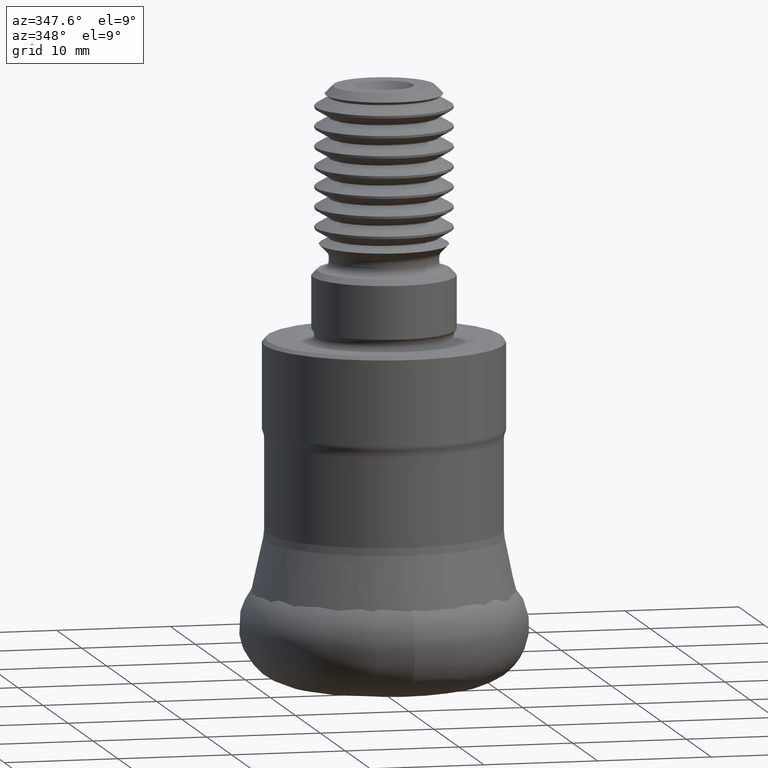
[diagram: clean part render]
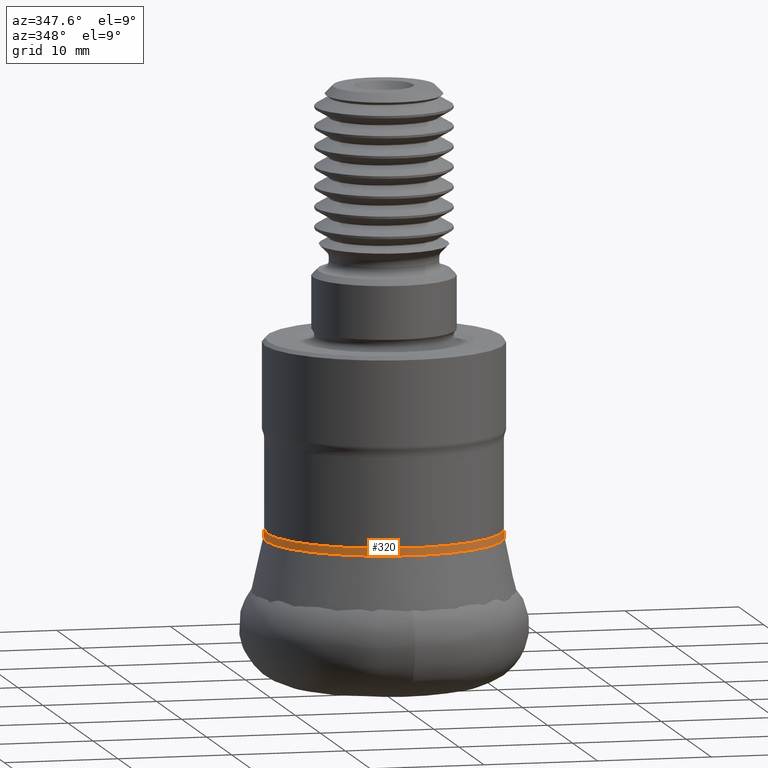
[diagram: same view with one face highlighted and labeled with its STEP entity id]
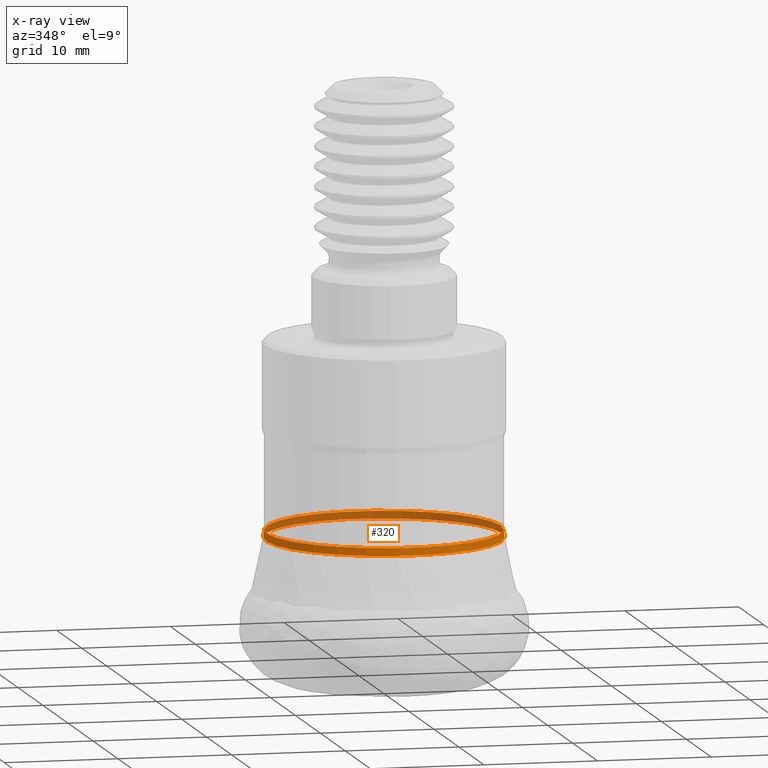
[diagram: x-ray of the same camera — body ghosted, the highlighted face saturated]
A machine part, auxiliary view. The second image highlights one B-rep face of the part: STEP entity #320.
The next image is the same camera in x-ray: the body ghosted, the highlighted face saturated — about 46% of this face is hidden behind the body in this view.
In plain terms, the highlighted toroidal blend (fillet) surface has major radius 13.3 mm and minor (blend) radius 3 mm.
Its self-contained STEP definition (entity closure, byte-faithful):
#66 = ORIENTED_EDGE ( 'NONE', *, *, #1536, .F. ) ;
#110 = AXIS2_PLACEMENT_3D ( 'NONE', #566, #1953, #1950 ) ;
#174 = DIRECTION ( 'NONE',  ( -0.0000000000000000000, -0.0000000000000000000, 1.000000000000000000 ) ) ;
#191 = VERTEX_POINT ( 'NONE', #1798 ) ;
#285 = ORIENTED_EDGE ( 'NONE', *, *, #2013, .T. ) ;
#320 = ADVANCED_FACE ( 'NONE', ( #1337, #1546 ), #921, .F. ) ;
#406 = AXIS2_PLACEMENT_3D ( 'NONE', #1487, #174, #1330 ) ;
#566 = CARTESIAN_POINT ( 'NONE',  ( 0.0000000000000000000, 0.0000000000000000000, -13.33990947849223100 ) ) ;
#632 = EDGE_LOOP ( 'NONE', ( #66 ) ) ;
#921 = TOROIDAL_SURFACE ( 'NONE', #110, 13.29999999999983900, 3.000000000000000000 ) ;
#1201 = DIRECTION ( 'NONE',  ( -0.0000000000000000000, -0.0000000000000000000, 1.000000000000000000 ) ) ;
#1212 = VERTEX_POINT ( 'NONE', #1513 ) ;
#1214 = CIRCLE ( 'NONE', #1459, 10.29999999999984100 ) ;
#1330 = DIRECTION ( 'NONE',  ( 1.000000000000000000, 0.0000000000000000000, 0.0000000000000000000 ) ) ;
#1337 = FACE_OUTER_BOUND ( 'NONE', #632, .T. ) ;
#1459 = AXIS2_PLACEMENT_3D ( 'NONE', #1854, #1201, #1779 ) ;
#1487 = CARTESIAN_POINT ( 'NONE',  ( 0.0000000000000000000, 0.0000000000000000000, -12.66870715248322400 ) ) ;
#1513 = CARTESIAN_POINT ( 'NONE',  ( 10.29999999999984100, 0.0000000000000000000, -13.33990947849223100 ) ) ;
#1536 = EDGE_CURVE ( 'NONE', #191, #191, #1813, .T. ) ;
#1546 = FACE_OUTER_BOUND ( 'NONE', #1886, .T. ) ;
#1779 = DIRECTION ( 'NONE',  ( 1.000000000000000000, 0.0000000000000000000, 0.0000000000000000000 ) ) ;
#1798 = CARTESIAN_POINT ( 'NONE',  ( 10.37604934419867000, 0.0000000000000000000, -12.66870715248322400 ) ) ;
#1813 = CIRCLE ( 'NONE', #406, 10.37604934419867000 ) ;
#1854 = CARTESIAN_POINT ( 'NONE',  ( 0.0000000000000000000, 0.0000000000000000000, -13.33990947849223100 ) ) ;
#1886 = EDGE_LOOP ( 'NONE', ( #285 ) ) ;
#1950 = DIRECTION ( 'NONE',  ( 1.000000000000000000, 0.0000000000000000000, 0.0000000000000000000 ) ) ;
#1953 = DIRECTION ( 'NONE',  ( -0.0000000000000000000, -0.0000000000000000000, 1.000000000000000000 ) ) ;
#2013 = EDGE_CURVE ( 'NONE', #1212, #1212, #1214, .T. ) ;